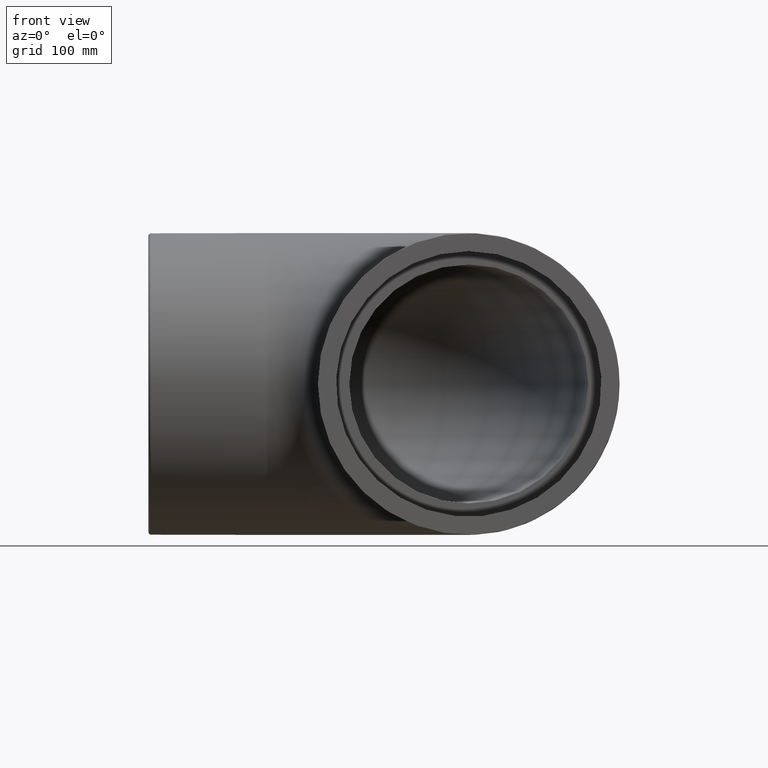
[diagram: clean part render]
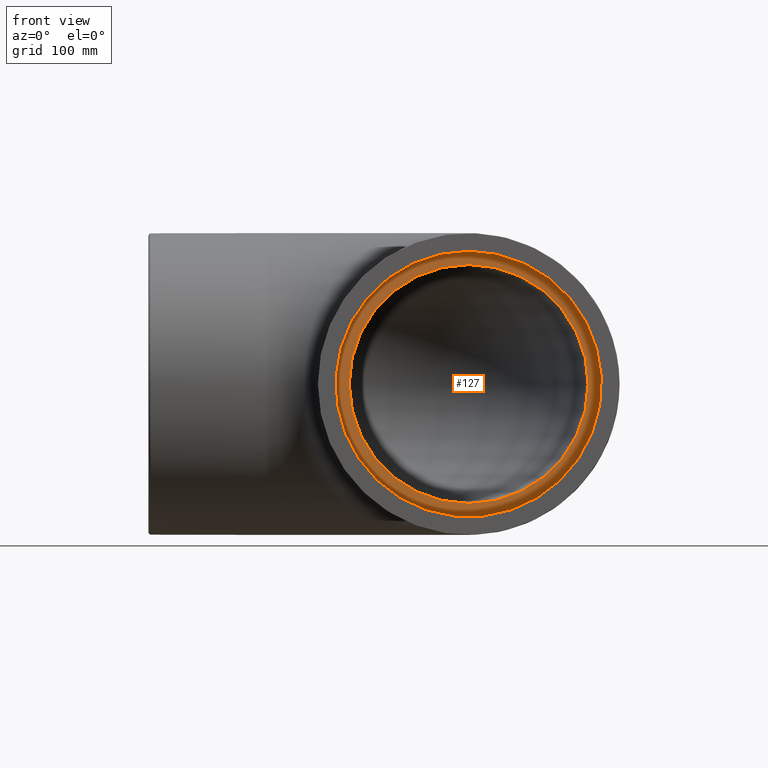
[diagram: same view with one face highlighted and labeled with its STEP entity id]
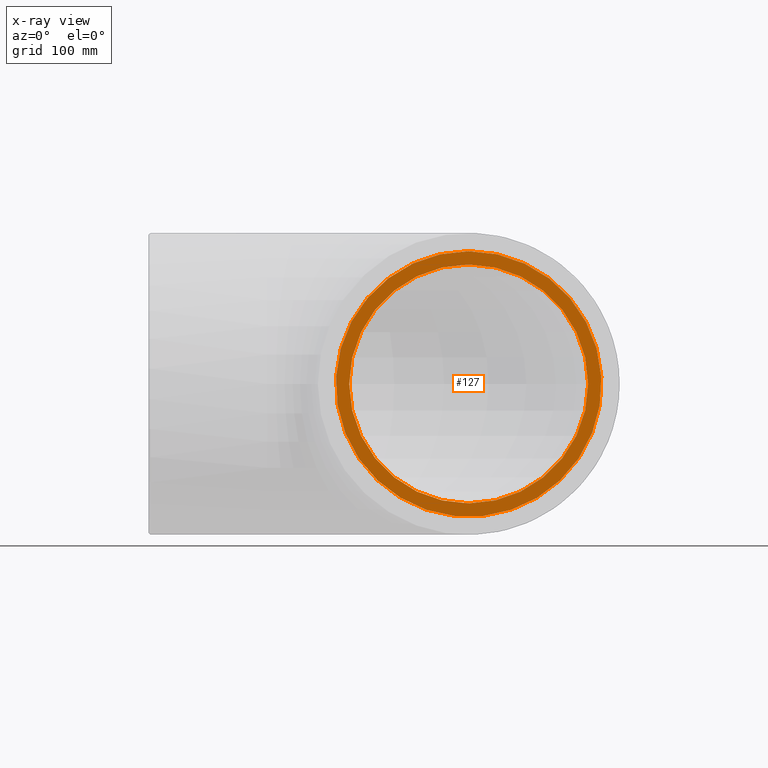
[diagram: x-ray of the same camera — body ghosted, the highlighted face saturated]
A machine part, front view. The second image highlights one B-rep face of the part: STEP entity #127.
The next image is the same camera in x-ray: the body ghosted, the highlighted face saturated — about 0% of this face is hidden behind the body in this view.
In plain terms, the highlighted planar face has unit normal (0, 1, 0).
Its self-contained STEP definition (entity closure, byte-faithful):
#15=PLANE('',#144);
#25=FACE_BOUND('',#50,.T.);
#36=FACE_OUTER_BOUND('',#49,.T.);
#49=EDGE_LOOP('',(#104));
#50=EDGE_LOOP('',(#105));
#67=CIRCLE('',#139,141.75);
#69=CIRCLE('',#142,157.5);
#78=VERTEX_POINT('',#208);
#80=VERTEX_POINT('',#213);
#89=EDGE_CURVE('',#78,#78,#67,.T.);
#91=EDGE_CURVE('',#80,#80,#69,.T.);
#104=ORIENTED_EDGE('',*,*,#91,.F.);
#105=ORIENTED_EDGE('',*,*,#89,.T.);
#127=ADVANCED_FACE('',(#36,#25),#15,.F.);
#139=AXIS2_PLACEMENT_3D('',#209,#164,#165);
#142=AXIS2_PLACEMENT_3D('',#214,#170,#171);
#144=AXIS2_PLACEMENT_3D('',#217,#174,#175);
#164=DIRECTION('center_axis',(6.12323399573677E-17,1.,0.));
#165=DIRECTION('ref_axis',(1.,-6.12323399573677E-17,0.));
#170=DIRECTION('center_axis',(6.12323399573677E-17,1.,0.));
#171=DIRECTION('ref_axis',(0.,0.,-1.));
#174=DIRECTION('center_axis',(6.12323399573677E-17,1.,0.));
#175=DIRECTION('ref_axis',(0.,0.,-1.));
#208=CARTESIAN_POINT('',(1.77635683940025E-14,-218.,141.75));
#209=CARTESIAN_POINT('Origin',(0.,-218.,0.));
#213=CARTESIAN_POINT('',(-3.2636837197277E-14,-218.,157.5));
#214=CARTESIAN_POINT('Origin',(-1.33486501107062E-14,-218.,0.));
#217=CARTESIAN_POINT('Origin',(-1.63562384102198E-14,-218.,-7.6225255229082E-15));